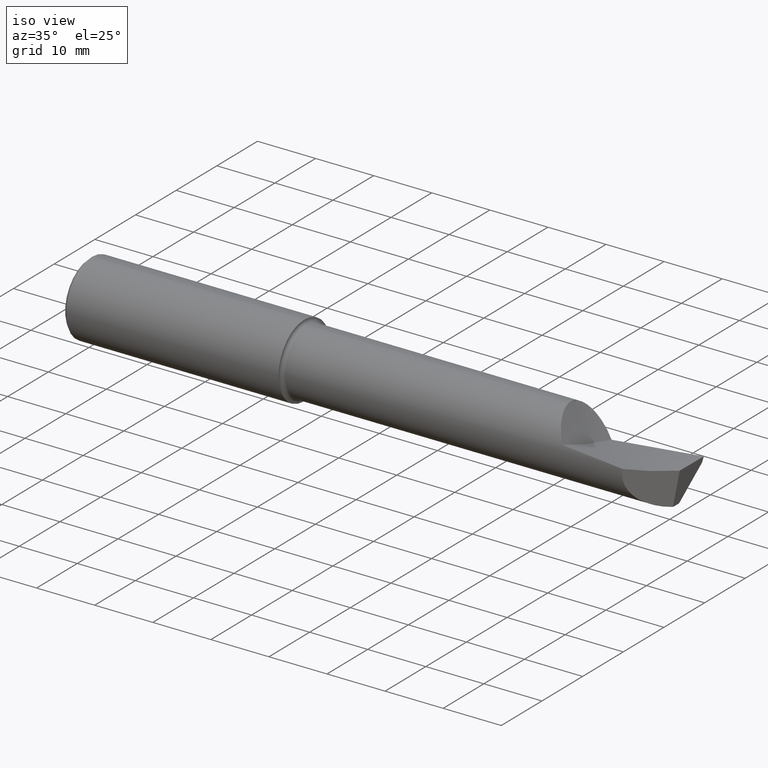
[diagram: clean part render]
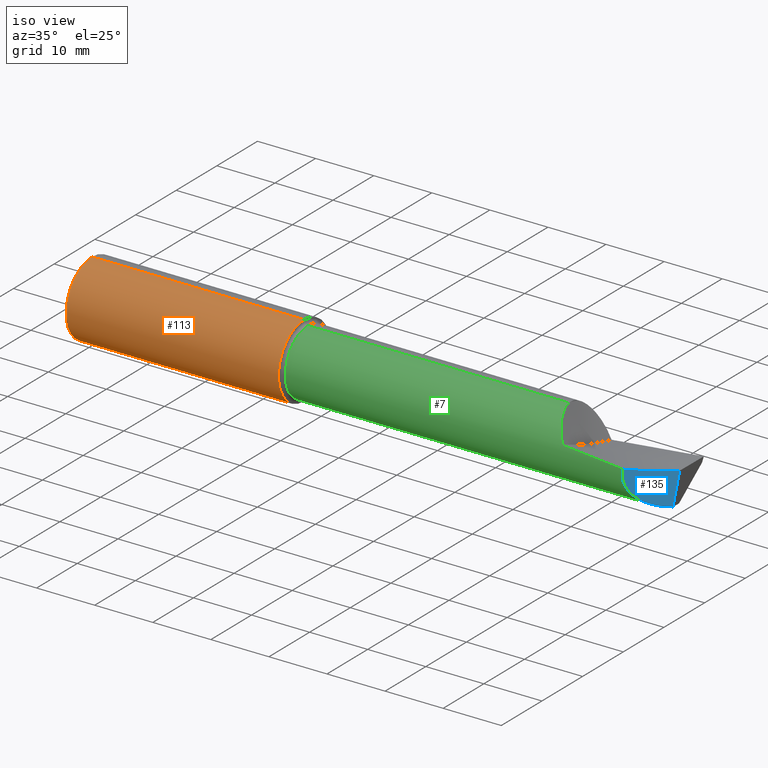
[diagram: same view with three faces highlighted in distinct colors, each labeled with its STEP entity id]
A machine part, iso view with three faces highlighted in distinct colors.
Their STEP definitions:

[orange] entity #113 — the highlighted cylindrical surface (partial cylindrical patch) has radius 6.3462 mm, axis along (-1, -0, -0).
#2 = ORIENTED_EDGE ( 'NONE', *, *, #268, .T. ) ;
#12 = ORIENTED_EDGE ( 'NONE', *, *, #91, .F. ) ;
#21 = AXIS2_PLACEMENT_3D ( 'NONE', #501, #151, #140 ) ;
#47 = DIRECTION ( 'NONE',  ( -1.000000000000000000, -0.000000000000000000, -0.000000000000000000 ) ) ;
#74 = CARTESIAN_POINT ( 'NONE',  ( 0.02000000000000000042, 3.059780027669661931E-17, -0.2498499999999999888 ) ) ;
#75 = EDGE_LOOP ( 'NONE', ( #12, #676, #2, #224 ) ) ;
#86 = VERTEX_POINT ( 'NONE', #657 ) ;
#91 = EDGE_CURVE ( 'NONE', #86, #331, #499, .T. ) ;
#113 = ADVANCED_FACE ( 'NONE', ( #266 ), #729, .T. ) ;
#140 = DIRECTION ( 'NONE',  ( 0.000000000000000000, 0.000000000000000000, 1.000000000000000000 ) ) ;
#151 = DIRECTION ( 'NONE',  ( -1.000000000000000000, -0.000000000000000000, -0.000000000000000000 ) ) ;
#185 = CARTESIAN_POINT ( 'NONE',  ( 1.459525038226269666, 0.000000000000000000, 0.2498499999999999888 ) ) ;
#189 = CIRCLE ( 'NONE', #236, 0.2498499999999999888 ) ;
#218 = DIRECTION ( 'NONE',  ( 0.000000000000000000, 0.000000000000000000, 1.000000000000000000 ) ) ;
#224 = ORIENTED_EDGE ( 'NONE', *, *, #669, .F. ) ;
#236 = AXIS2_PLACEMENT_3D ( 'NONE', #698, #743, #218 ) ;
#261 = DIRECTION ( 'NONE',  ( 1.000000000000000000, 0.000000000000000000, 0.000000000000000000 ) ) ;
#266 = FACE_OUTER_BOUND ( 'NONE', #75, .T. ) ;
#268 = EDGE_CURVE ( 'NONE', #361, #580, #620, .T. ) ;
#331 = VERTEX_POINT ( 'NONE', #74 ) ;
#361 = VERTEX_POINT ( 'NONE', #185 ) ;
#363 = DIRECTION ( 'NONE',  ( 0.000000000000000000, 0.000000000000000000, -1.000000000000000000 ) ) ;
#366 = VECTOR ( 'NONE', #47, 39.37007874015748143 ) ;
#391 = CARTESIAN_POINT ( 'NONE',  ( 0.02000000000000000042, 0.000000000000000000, 0.2498499999999999888 ) ) ;
#424 = CARTESIAN_POINT ( 'NONE',  ( 1.459525038226269666, 0.000000000000000000, 0.000000000000000000 ) ) ;
#431 = AXIS2_PLACEMENT_3D ( 'NONE', #424, #261, #363 ) ;
#487 = DIRECTION ( 'NONE',  ( -1.000000000000000000, -0.000000000000000000, -0.000000000000000000 ) ) ;
#494 = EDGE_CURVE ( 'NONE', #361, #86, #726, .T. ) ;
#499 = LINE ( 'NONE', #725, #713 ) ;
#501 = CARTESIAN_POINT ( 'NONE',  ( 0.000000000000000000, 0.000000000000000000, 0.000000000000000000 ) ) ;
#568 = CARTESIAN_POINT ( 'NONE',  ( 0.000000000000000000, 0.000000000000000000, 0.2498499999999999888 ) ) ;
#580 = VERTEX_POINT ( 'NONE', #391 ) ;
#620 = LINE ( 'NONE', #568, #366 ) ;
#657 = CARTESIAN_POINT ( 'NONE',  ( 1.459525038226269666, 3.059780027669661931E-17, -0.2498499999999999888 ) ) ;
#669 = EDGE_CURVE ( 'NONE', #331, #580, #189, .T. ) ;
#676 = ORIENTED_EDGE ( 'NONE', *, *, #494, .F. ) ;
#698 = CARTESIAN_POINT ( 'NONE',  ( 0.02000000000000000042, 0.000000000000000000, 0.000000000000000000 ) ) ;
#713 = VECTOR ( 'NONE', #487, 39.37007874015748143 ) ;
#725 = CARTESIAN_POINT ( 'NONE',  ( 0.000000000000000000, 3.059780027669661931E-17, -0.2498499999999999888 ) ) ;
#726 = CIRCLE ( 'NONE', #431, 0.2498499999999999888 ) ;
#729 = CYLINDRICAL_SURFACE ( 'NONE', #21, 0.2498499999999999888 ) ;
#743 = DIRECTION ( 'NONE',  ( -1.000000000000000000, -0.000000000000000000, -0.000000000000000000 ) ) ;

[blue] entity #135 — the highlighted planar face has unit normal (-0.7071, 0.7071, 0).
#16 = ORIENTED_EDGE ( 'NONE', *, *, #571, .T. ) ;
#53 = CARTESIAN_POINT ( 'NONE',  ( 3.960702989773093652, -0.02764916303553413557, -0.3009961683226823337 ) ) ;
#59 =( BOUNDED_CURVE ( )  B_SPLINE_CURVE ( 3, ( #633, #706, #234, #637 ),
 .UNSPECIFIED., .F., .T. ) 
 B_SPLINE_CURVE_WITH_KNOTS ( ( 4, 4 ),
 ( 6.120117067556848589, 7.774217519258906250 ),
 .UNSPECIFIED. ) 
 CURVE ( )  GEOMETRIC_REPRESENTATION_ITEM ( )  RATIONAL_B_SPLINE_CURVE ( ( 1.000000000000000000, 0.7846997011302692115, 0.7846997011302692115, 1.000000000000000000 ) ) 
 REPRESENTATION_ITEM ( '' )  );
#65 = ORIENTED_EDGE ( 'NONE', *, *, #328, .T. ) ;
#95 = FACE_OUTER_BOUND ( 'NONE', #553, .T. ) ;
#135 = ADVANCED_FACE ( 'NONE', ( #95 ), #545, .F. ) ;
#152 = CARTESIAN_POINT ( 'NONE',  ( 3.754857864376268672, -0.2334942884323591705, -0.2500000000000000555 ) ) ;
#169 = LINE ( 'NONE', #53, #467 ) ;
#174 = CARTESIAN_POINT ( 'NONE',  ( 3.997941307501973185, 0.009589154693344590849, -0.0003725554249012129554 ) ) ;
#180 = ORIENTED_EDGE ( 'NONE', *, *, #333, .T. ) ;
#234 = CARTESIAN_POINT ( 'NONE',  ( 3.833707386268460748, -0.1546447665401670113, -0.2083403850635354160 ) ) ;
#246 = CARTESIAN_POINT ( 'NONE',  ( 3.846075425691744876, -0.1422767271168803027, 0.01425986872581132096 ) ) ;
#255 = DIRECTION ( 'NONE',  ( -0.7071067811865472397, 0.7071067811865477948, 0.000000000000000000 ) ) ;
#289 = CARTESIAN_POINT ( 'NONE',  ( 3.771270714435558613, -0.2170814383730695907, 0.03571623039850645859 ) ) ;
#328 = EDGE_CURVE ( 'NONE', #456, #565, #683, .T. ) ;
#333 = EDGE_CURVE ( 'NONE', #565, #549, #59, .T. ) ;
#353 = CARTESIAN_POINT ( 'NONE',  ( 3.771270714435558613, -0.2170814383730695907, 0.03571623039850645859 ) ) ;
#456 = VERTEX_POINT ( 'NONE', #715 ) ;
#467 = VECTOR ( 'NONE', #635, 39.37007874015748143 ) ;
#474 = CARTESIAN_POINT ( 'NONE',  ( 3.921631811082993746, -0.06672034172563433285, 0.002224270572586397546 ) ) ;
#490 = DIRECTION ( 'NONE',  ( -0.7071067811865477948, -0.7071067811865472397, 0.000000000000000000 ) ) ;
#545 = PLANE ( 'NONE',  #740 ) ;
#549 = VERTEX_POINT ( 'NONE', #694 ) ;
#553 = EDGE_LOOP ( 'NONE', ( #180, #16, #65 ) ) ;
#565 = VERTEX_POINT ( 'NONE', #289 ) ;
#571 = EDGE_CURVE ( 'NONE', #549, #456, #169, .T. ) ;
#633 = CARTESIAN_POINT ( 'NONE',  ( 3.771270714435558613, -0.2170814383730695907, 0.03571623039850645859 ) ) ;
#635 = DIRECTION ( 'NONE',  ( 0.1220122463319276707, 0.1220122463319275735, 0.9850005195379716305 ) ) ;
#637 = CARTESIAN_POINT ( 'NONE',  ( 3.970822649411937633, -0.01752950339669014437, -0.2193005164395776252 ) ) ;
#683 = B_SPLINE_CURVE_WITH_KNOTS ( 'NONE', 3,
 ( #174, #474, #246, #353 ),
 .UNSPECIFIED., .F., .F.,
 ( 4, 4 ),
 ( 7.367693421369182901E-05, 0.008267352743947879376 ),
 .UNSPECIFIED. ) ;
#694 = CARTESIAN_POINT ( 'NONE',  ( 3.970822649411937633, -0.01752950339669014437, -0.2193005164395776252 ) ) ;
#706 = CARTESIAN_POINT ( 'NONE',  ( 3.748939529771277979, -0.2394126230373501418, -0.1000115783150166415 ) ) ;
#715 = CARTESIAN_POINT ( 'NONE',  ( 3.997941307501973185, 0.009589154693344590849, -0.0003725554249012129554 ) ) ;
#740 = AXIS2_PLACEMENT_3D ( 'NONE', #152, #255, #490 ) ;

[green] entity #7 — the highlighted cylindrical surface (partial cylindrical patch) has radius 5.588 mm, axis along (-1, -0, -0).
#1 = CARTESIAN_POINT ( 'NONE',  ( 3.290623232216533633, -0.1224700767580416683, 0.1827614645761383438 ) ) ;
#7 = ADVANCED_FACE ( 'NONE', ( #402 ), #294, .T. ) ;
#8 = CARTESIAN_POINT ( 'NONE',  ( 3.291057892820141273, -0.1233858508182218705, 0.1821426667538934285 ) ) ;
#11 = CARTESIAN_POINT ( 'NONE',  ( 3.291167129969536198, -0.1236153981034043697, 0.1819869571867534508 ) ) ;
#15 = CARTESIAN_POINT ( 'NONE',  ( 3.261697773686587976, -0.04351199093200980306, 0.2169691419821611622 ) ) ;
#26 = CARTESIAN_POINT ( 'NONE',  ( 3.471819322562522903, -0.01495104440659135100, -0.2196163581689157818 ) ) ;
#38 = CARTESIAN_POINT ( 'NONE',  ( 3.301763750540527287, -0.1449087477148408853, 0.1665523849273817802 ) ) ;
#40 = EDGE_CURVE ( 'NONE', #137, #534, #258, .T. ) ;
#44 = CARTESIAN_POINT ( 'NONE',  ( 3.595439364797041293, 5.335640612625514099E-18, -0.2200000000000000566 ) ) ;
#50 = B_SPLINE_CURVE_WITH_KNOTS ( 'NONE', 3,
 ( #544, #26, #360, #88 ),
 .UNSPECIFIED., .F., .F.,
 ( 4, 4 ),
 ( 0.000000000000000000, 0.004744245821462765231 ),
 .UNSPECIFIED. ) ;
#57 = ORIENTED_EDGE ( 'NONE', *, *, #233, .T. ) ;
#59 =( BOUNDED_CURVE ( )  B_SPLINE_CURVE ( 3, ( #633, #706, #234, #637 ),
 .UNSPECIFIED., .F., .T. ) 
 B_SPLINE_CURVE_WITH_KNOTS ( ( 4, 4 ),
 ( 6.120117067556848589, 7.774217519258906250 ),
 .UNSPECIFIED. ) 
 CURVE ( )  GEOMETRIC_REPRESENTATION_ITEM ( )  RATIONAL_B_SPLINE_CURVE ( ( 1.000000000000000000, 0.7846997011302692115, 0.7846997011302692115, 1.000000000000000000 ) ) 
 REPRESENTATION_ITEM ( '' )  );
#62 = VERTEX_POINT ( 'NONE', #721 ) ;
#88 = CARTESIAN_POINT ( 'NONE',  ( 3.595439364797041293, 5.335640612625514099E-18, -0.2200000000000000566 ) ) ;
#100 = ORIENTED_EDGE ( 'NONE', *, *, #40, .F. ) ;
#102 = CARTESIAN_POINT ( 'NONE',  ( 3.343568907379044219, -0.2004185357093107300, 0.09466616758537438336 ) ) ;
#116 = CARTESIAN_POINT ( 'NONE',  ( 3.970838677816552753, -0.005850919593664221513, -0.2200000000000000011 ) ) ;
#129 = VERTEX_POINT ( 'NONE', #733 ) ;
#137 = VERTEX_POINT ( 'NONE', #306 ) ;
#144 = VECTOR ( 'NONE', #418, 39.37007874015748143 ) ;
#155 = VECTOR ( 'NONE', #208, 39.37007874015748143 ) ;
#157 = CARTESIAN_POINT ( 'NONE',  ( 3.771270714435558613, -0.2170814383730695907, 0.03571623039850645859 ) ) ;
#167 = CARTESIAN_POINT ( 'NONE',  ( 1.484525038226269800, 0.000000000000000000, 0.000000000000000000 ) ) ;
#170 = CARTESIAN_POINT ( 'NONE',  ( 3.286194494552776568, -0.1128910208792931746, 0.1889741111404043550 ) ) ;
#176 = EDGE_LOOP ( 'NONE', ( #100, #693, #243, #754, #704, #429, #57, #393, #722, #748 ) ) ;
#178 = CARTESIAN_POINT ( 'NONE',  ( 3.253048836201133387, -1.183062825808249093E-06, 0.2200124226379089887 ) ) ;
#198 = EDGE_CURVE ( 'NONE', #384, #129, #747, .T. ) ;
#203 = DIRECTION ( 'NONE',  ( 0.000000000000000000, 0.000000000000000000, 1.000000000000000000 ) ) ;
#208 = DIRECTION ( 'NONE',  ( -1.000000000000000000, -0.000000000000000000, -0.000000000000000000 ) ) ;
#222 = CARTESIAN_POINT ( 'NONE',  ( 3.564429700643781285, -0.2143015012764733218, 0.05261254719292926540 ) ) ;
#228 = VERTEX_POINT ( 'NONE', #283 ) ;
#233 = EDGE_CURVE ( 'NONE', #565, #594, #654, .T. ) ;
#234 = CARTESIAN_POINT ( 'NONE',  ( 3.833707386268460748, -0.1546447665401670113, -0.2083403850635354160 ) ) ;
#243 = ORIENTED_EDGE ( 'NONE', *, *, #413, .T. ) ;
#258 = LINE ( 'NONE', #495, #155 ) ;
#275 = AXIS2_PLACEMENT_3D ( 'NONE', #372, #322, #203 ) ;
#278 = EDGE_CURVE ( 'NONE', #534, #129, #567, .T. ) ;
#283 = CARTESIAN_POINT ( 'NONE',  ( 3.970889738018300363, 0.000000000000000000, -0.2200000000000000566 ) ) ;
#289 = CARTESIAN_POINT ( 'NONE',  ( 3.771270714435558613, -0.2170814383730695907, 0.03571623039850645859 ) ) ;
#290 = CARTESIAN_POINT ( 'NONE',  ( 3.291026367974280387, -0.1233195885780034168, 0.1821875986796247238 ) ) ;
#293 = CARTESIAN_POINT ( 'NONE',  ( 3.970889738018300363, 0.000000000000000000, -0.2200000000000000566 ) ) ;
#294 = CYLINDRICAL_SURFACE ( 'NONE', #275, 0.2200000000000000566 ) ;
#301 = LINE ( 'NONE', #602, #144 ) ;
#306 = CARTESIAN_POINT ( 'NONE',  ( 3.410000000000000142, 2.694222958124177253E-17, -0.2200000000000000011 ) ) ;
#308 = EDGE_CURVE ( 'NONE', #594, #384, #475, .T. ) ;
#314 = EDGE_CURVE ( 'NONE', #549, #228, #341, .T. ) ;
#322 = DIRECTION ( 'NONE',  ( -1.000000000000000000, -0.000000000000000000, -0.000000000000000000 ) ) ;
#324 = CARTESIAN_POINT ( 'NONE',  ( 3.331611175002783920, -0.1879456397189677441, 0.1165832106559181874 ) ) ;
#326 = CARTESIAN_POINT ( 'NONE',  ( 3.292376002346411923, -0.1261431576479062899, 0.1802597226350386439 ) ) ;
#332 = DIRECTION ( 'NONE',  ( -1.000000000000000000, -0.000000000000000000, -0.000000000000000000 ) ) ;
#333 = EDGE_CURVE ( 'NONE', #565, #549, #59, .T. ) ;
#334 = DIRECTION ( 'NONE',  ( -1.000000000000000000, -0.000000000000000000, -0.000000000000000000 ) ) ;
#341 =( BOUNDED_CURVE ( )  B_SPLINE_CURVE ( 3, ( #357, #587, #116, #293 ),
 .UNSPECIFIED., .F., .F. ) 
 B_SPLINE_CURVE_WITH_KNOTS ( ( 4, 4 ),
 ( 6.274373815428443635, 6.354137930144020174 ),
 .UNSPECIFIED. ) 
 CURVE ( )  GEOMETRIC_REPRESENTATION_ITEM ( )  RATIONAL_B_SPLINE_CURVE ( ( 1.000000000000000000, 0.9994698774393541152, 0.9994698774393541152, 1.000000000000000000 ) ) 
 REPRESENTATION_ITEM ( '' )  );
#357 = CARTESIAN_POINT ( 'NONE',  ( 3.970822649411937633, -0.01752950339669014437, -0.2193005164395776252 ) ) ;
#360 = CARTESIAN_POINT ( 'NONE',  ( 3.533631329114474084, -0.007501773097098954519, -0.2200000000000000566 ) ) ;
#372 = CARTESIAN_POINT ( 'NONE',  ( 0.000000000000000000, 0.000000000000000000, 0.000000000000000000 ) ) ;
#379 = CARTESIAN_POINT ( 'NONE',  ( 3.293395547304612148, -0.1282223768002852260, 0.1787856457334612847 ) ) ;
#384 = VERTEX_POINT ( 'NONE', #703 ) ;
#392 = DIRECTION ( 'NONE',  ( 0.000000000000000000, 0.000000000000000000, 1.000000000000000000 ) ) ;
#393 = ORIENTED_EDGE ( 'NONE', *, *, #308, .T. ) ;
#396 = CARTESIAN_POINT ( 'NONE',  ( 3.256435488265875033, -0.02101578052564477203, 0.2199999835917511026 ) ) ;
#402 = FACE_OUTER_BOUND ( 'NONE', #176, .T. ) ;
#413 = EDGE_CURVE ( 'NONE', #62, #491, #50, .T. ) ;
#418 = DIRECTION ( 'NONE',  ( 1.000000000000000000, -0.000000000000000000, -0.000000000000000000 ) ) ;
#429 = ORIENTED_EDGE ( 'NONE', *, *, #333, .F. ) ;
#447 = CARTESIAN_POINT ( 'NONE',  ( 3.358974358974360808, -0.2089406661879938953, 0.06887523512059523512 ) ) ;
#454 = CARTESIAN_POINT ( 'NONE',  ( 3.357725844419106043, -0.2089080893730914656, 0.06897406050240462161 ) ) ;
#459 = CARTESIAN_POINT ( 'NONE',  ( 1.484525038226269800, 2.694222958124177561E-17, -0.2200000000000000566 ) ) ;
#475 = B_SPLINE_CURVE_WITH_KNOTS ( 'NONE', 3,
 ( #615, #102, #324, #736, #38, #379, #326, #564, #11, #8, #290, #1, #589, #170, #579, #582, #532, #15, #396, #178 ),
 .UNSPECIFIED., .F., .F.,
 ( 4, 2, 2, 1, 1, 2, 2, 1, 1, 2, 2, 4 ),
 ( 0.000000000000000000, 0.2319181769988061803, 0.4638363539976123606, 0.4928261261224624601, 0.4964498476380705960, 0.4982617083958735815, 0.5000735691536765115, 0.5073210121848932275, 0.5218158982473263263, 0.5797954424970611642, 0.6957545309965305069, 0.9276727079954696364 ),
 .UNSPECIFIED. ) ;
#491 = VERTEX_POINT ( 'NONE', #44 ) ;
#495 = CARTESIAN_POINT ( 'NONE',  ( 0.000000000000000000, 2.694222958124177561E-17, -0.2200000000000000566 ) ) ;
#508 = VECTOR ( 'NONE', #572, 39.37007874015748143 ) ;
#510 = CARTESIAN_POINT ( 'NONE',  ( 3.356559098504054095, -0.2088777642239234011, 0.06906576061805759503 ) ) ;
#532 = CARTESIAN_POINT ( 'NONE',  ( 3.272414265991217874, -0.07762841386095627183, 0.2061942163186633314 ) ) ;
#534 = VERTEX_POINT ( 'NONE', #459 ) ;
#541 = EDGE_CURVE ( 'NONE', #137, #62, #636, .T. ) ;
#544 = CARTESIAN_POINT ( 'NONE',  ( 3.410000000000000142, -0.02232082031225495616, -0.2188647549985790752 ) ) ;
#549 = VERTEX_POINT ( 'NONE', #694 ) ;
#561 = CARTESIAN_POINT ( 'NONE',  ( 3.356559098504054095, -0.2088777642239234011, 0.06906576061805759503 ) ) ;
#564 = CARTESIAN_POINT ( 'NONE',  ( 3.291331261531611485, -0.1239598244847215786, 0.1817528458976704064 ) ) ;
#565 = VERTEX_POINT ( 'NONE', #289 ) ;
#567 = CIRCLE ( 'NONE', #710, 0.2200000000000000566 ) ;
#570 = DIRECTION ( 'NONE',  ( 0.000000000000000000, 0.000000000000000000, 1.000000000000000000 ) ) ;
#572 = DIRECTION ( 'NONE',  ( -1.000000000000000000, -0.000000000000000000, -0.000000000000000000 ) ) ;
#579 = CARTESIAN_POINT ( 'NONE',  ( 3.283226719027449558, -0.1059187799789650108, 0.1929277633858683116 ) ) ;
#582 = CARTESIAN_POINT ( 'NONE',  ( 3.276456940788353478, -0.08905058601310904265, 0.2015679351482914661 ) ) ;
#587 = CARTESIAN_POINT ( 'NONE',  ( 3.970816303086414756, -0.01169718663061289528, -0.2197667151436271948 ) ) ;
#589 = CARTESIAN_POINT ( 'NONE',  ( 3.289661220195153390, -0.1204269891560904721, 0.1841250165428741647 ) ) ;
#594 = VERTEX_POINT ( 'NONE', #510 ) ;
#602 = CARTESIAN_POINT ( 'NONE',  ( 3.410000000000000142, 0.000000000000000000, -0.2200000000000000566 ) ) ;
#615 = CARTESIAN_POINT ( 'NONE',  ( 3.356559098504054095, -0.2088777642239234011, 0.06906576061805759503 ) ) ;
#629 = CARTESIAN_POINT ( 'NONE',  ( 3.410000000000000142, 0.000000000000000000, 0.000000000000000000 ) ) ;
#633 = CARTESIAN_POINT ( 'NONE',  ( 3.771270714435558613, -0.2170814383730695907, 0.03571623039850645859 ) ) ;
#636 = CIRCLE ( 'NONE', #738, 0.2200000000000000011 ) ;
#637 = CARTESIAN_POINT ( 'NONE',  ( 3.970822649411937633, -0.01752950339669014437, -0.2193005164395776252 ) ) ;
#654 =( BOUNDED_CURVE ( )  B_SPLINE_CURVE ( 2, ( #157, #222, #447, #454, #561 ),
 .UNSPECIFIED., .F., .T. ) 
 B_SPLINE_CURVE_WITH_KNOTS ( ( 3, 2, 3 ),
 ( 0.1786485734947634574, 0.5000000000000000000, 0.5019619316750533189 ),
 .UNSPECIFIED. ) 
 CURVE ( )  GEOMETRIC_REPRESENTATION_ITEM ( )  RATIONAL_B_SPLINE_CURVE ( ( 0.9929648280793841320, 0.9916323561610862480, 0.9963010501997406898, 0.9962725466426998189, 0.9962442667737845259 ) ) 
 REPRESENTATION_ITEM ( '' )  );
#675 = CARTESIAN_POINT ( 'NONE',  ( 0.000000000000000000, 0.000000000000000000, 0.2200000000000000566 ) ) ;
#693 = ORIENTED_EDGE ( 'NONE', *, *, #541, .T. ) ;
#694 = CARTESIAN_POINT ( 'NONE',  ( 3.970822649411937633, -0.01752950339669014437, -0.2193005164395776252 ) ) ;
#703 = CARTESIAN_POINT ( 'NONE',  ( 3.253048836201133387, -1.183062825808249093E-06, 0.2200124226379089887 ) ) ;
#704 = ORIENTED_EDGE ( 'NONE', *, *, #314, .F. ) ;
#706 = CARTESIAN_POINT ( 'NONE',  ( 3.748939529771277979, -0.2394126230373501418, -0.1000115783150166415 ) ) ;
#710 = AXIS2_PLACEMENT_3D ( 'NONE', #167, #334, #392 ) ;
#721 = CARTESIAN_POINT ( 'NONE',  ( 3.410000000000000142, -0.02232082031225495616, -0.2188647549985790752 ) ) ;
#722 = ORIENTED_EDGE ( 'NONE', *, *, #198, .T. ) ;
#732 = EDGE_CURVE ( 'NONE', #491, #228, #301, .T. ) ;
#733 = CARTESIAN_POINT ( 'NONE',  ( 1.484525038226269800, 0.000000000000000000, 0.2200000000000000566 ) ) ;
#736 = CARTESIAN_POINT ( 'NONE',  ( 3.310708596583527008, -0.1601832435777457986, 0.1525009408925951659 ) ) ;
#738 = AXIS2_PLACEMENT_3D ( 'NONE', #629, #332, #570 ) ;
#747 = LINE ( 'NONE', #675, #508 ) ;
#748 = ORIENTED_EDGE ( 'NONE', *, *, #278, .F. ) ;
#754 = ORIENTED_EDGE ( 'NONE', *, *, #732, .T. ) ;